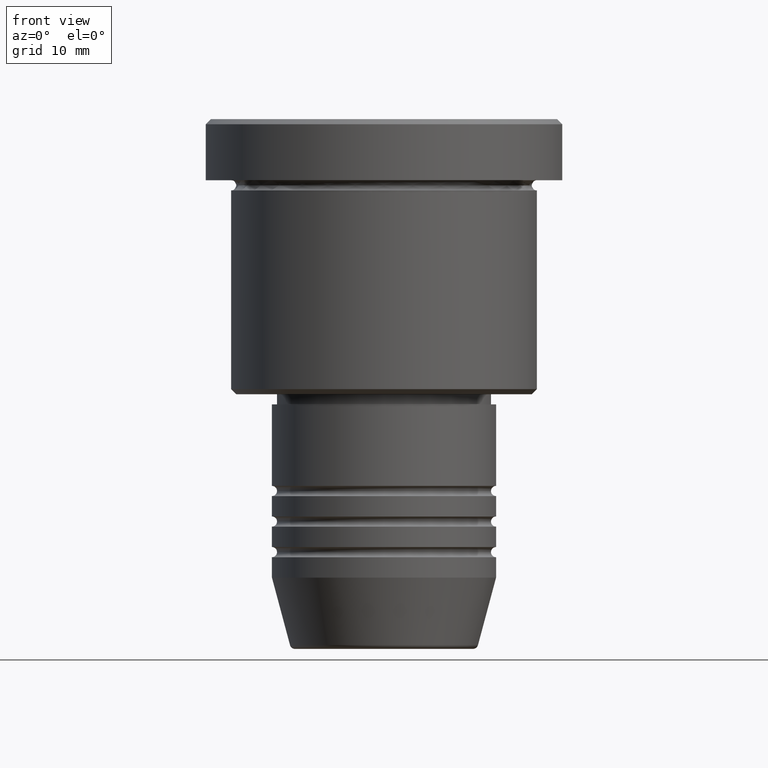
[diagram: clean part render]
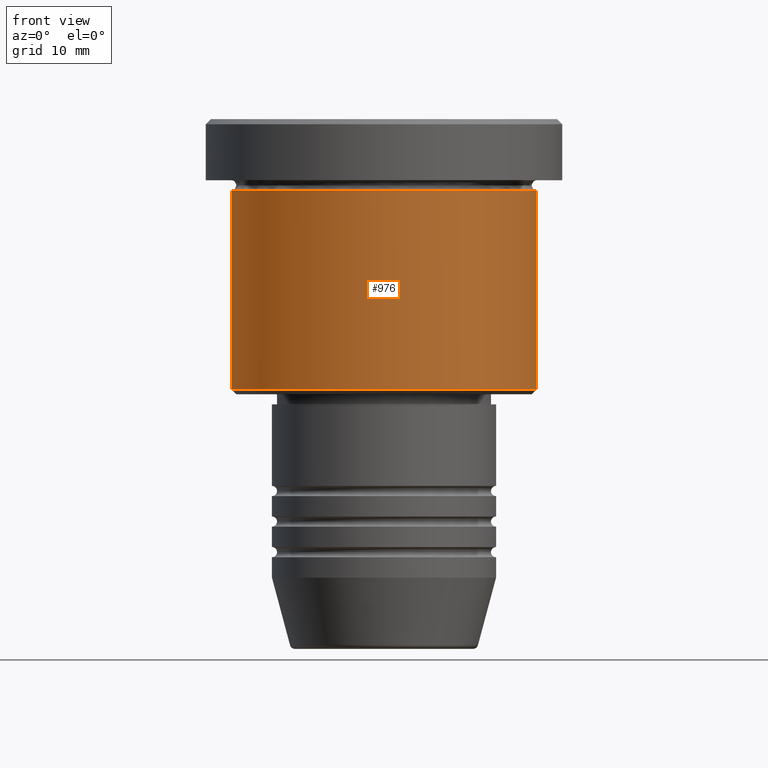
[diagram: same view with one face highlighted and labeled with its STEP entity id]
A machine part, front view. The second image highlights one B-rep face of the part: STEP entity #976.
In plain terms, the highlighted cylindrical surface (partial cylindrical patch) has radius 15 mm, axis along (-0, -0, 1).
Its self-contained STEP definition (entity closure, byte-faithful):
#17 = LINE ( 'NONE', #177, #50 ) ;
#34 = DIRECTION ( 'NONE',  ( -1.000000000000000000, 0.000000000000000000, 0.000000000000000000 ) ) ;
#50 = VECTOR ( 'NONE', #370, 1000.000000000000000 ) ;
#111 = VERTEX_POINT ( 'NONE', #712 ) ;
#146 = ORIENTED_EDGE ( 'NONE', *, *, #299, .T. ) ;
#177 = CARTESIAN_POINT ( 'NONE',  ( 15.00000000000000000, 0.000000000000000000, 0.000000000000000000 ) ) ;
#201 = DIRECTION ( 'NONE',  ( -0.000000000000000000, -0.000000000000000000, 1.000000000000000000 ) ) ;
#258 = CARTESIAN_POINT ( 'NONE',  ( 0.000000000000000000, 0.000000000000000000, -26.49999999999998579 ) ) ;
#264 = DIRECTION ( 'NONE',  ( 1.000000000000000000, 0.000000000000000000, 0.000000000000000000 ) ) ;
#299 = EDGE_CURVE ( 'NONE', #111, #1030, #17, .T. ) ;
#306 = AXIS2_PLACEMENT_3D ( 'NONE', #345, #1083, #1180 ) ;
#323 = AXIS2_PLACEMENT_3D ( 'NONE', #446, #713, #264 ) ;
#338 = CARTESIAN_POINT ( 'NONE',  ( 15.00000000000000000, 0.000000000000000000, -6.999999999999995559 ) ) ;
#345 = CARTESIAN_POINT ( 'NONE',  ( 0.000000000000000000, 0.000000000000000000, 0.000000000000000000 ) ) ;
#370 = DIRECTION ( 'NONE',  ( -0.000000000000000000, -0.000000000000000000, 1.000000000000000000 ) ) ;
#446 = CARTESIAN_POINT ( 'NONE',  ( 0.000000000000000000, 0.000000000000000000, -6.999999999999995559 ) ) ;
#453 = CARTESIAN_POINT ( 'NONE',  ( -15.00000000000000000, 1.836970198721029589E-15, -6.999999999999995559 ) ) ;
#475 = ORIENTED_EDGE ( 'NONE', *, *, #1057, .T. ) ;
#511 = EDGE_LOOP ( 'NONE', ( #1029, #475, #146, #922 ) ) ;
#530 = FACE_OUTER_BOUND ( 'NONE', #511, .T. ) ;
#550 = CIRCLE ( 'NONE', #323, 15.00000000000000000 ) ;
#571 = VECTOR ( 'NONE', #201, 1000.000000000000000 ) ;
#577 = VERTEX_POINT ( 'NONE', #453 ) ;
#617 = DIRECTION ( 'NONE',  ( -0.000000000000000000, -0.000000000000000000, 1.000000000000000000 ) ) ;
#689 = CIRCLE ( 'NONE', #1137, 15.00000000000000000 ) ;
#710 = CYLINDRICAL_SURFACE ( 'NONE', #306, 15.00000000000000000 ) ;
#712 = CARTESIAN_POINT ( 'NONE',  ( 15.00000000000000000, 0.000000000000000000, -26.49999999999998579 ) ) ;
#713 = DIRECTION ( 'NONE',  ( -0.000000000000000000, -0.000000000000000000, 1.000000000000000000 ) ) ;
#744 = LINE ( 'NONE', #1041, #571 ) ;
#922 = ORIENTED_EDGE ( 'NONE', *, *, #1015, .F. ) ;
#976 = ADVANCED_FACE ( 'NONE', ( #530 ), #710, .T. ) ;
#987 = CARTESIAN_POINT ( 'NONE',  ( -15.00000000000000000, 1.836970198721029589E-15, -26.49999999999998579 ) ) ;
#1004 = VERTEX_POINT ( 'NONE', #987 ) ;
#1015 = EDGE_CURVE ( 'NONE', #577, #1030, #550, .T. ) ;
#1029 = ORIENTED_EDGE ( 'NONE', *, *, #1177, .F. ) ;
#1030 = VERTEX_POINT ( 'NONE', #338 ) ;
#1041 = CARTESIAN_POINT ( 'NONE',  ( -15.00000000000000000, 1.836970198721029589E-15, 0.000000000000000000 ) ) ;
#1057 = EDGE_CURVE ( 'NONE', #1004, #111, #689, .T. ) ;
#1083 = DIRECTION ( 'NONE',  ( -0.000000000000000000, -0.000000000000000000, 1.000000000000000000 ) ) ;
#1137 = AXIS2_PLACEMENT_3D ( 'NONE', #258, #617, #34 ) ;
#1177 = EDGE_CURVE ( 'NONE', #1004, #577, #744, .T. ) ;
#1180 = DIRECTION ( 'NONE',  ( 1.000000000000000000, 0.000000000000000000, 0.000000000000000000 ) ) ;